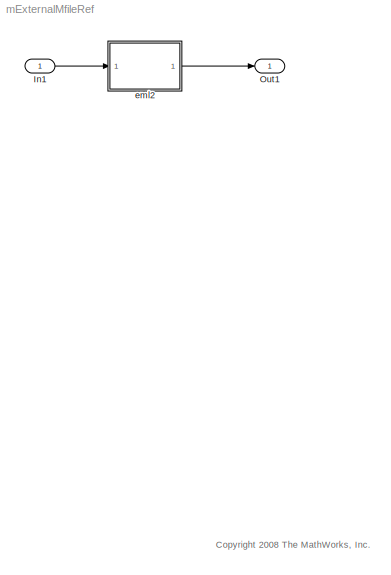
MODEL mExternalMfileRef
KIND model
BLOCK [Inport] In1
  DataType = double
  IconDisplay = Port number
  OutDataType = sfix(16)
  OutDataTypeStr = double
  OutScaling = 2^0
BLOCK [Outport] Out1
  IconDisplay = Port number
  OutDataType = sfix(16)
  OutScaling = 2^0
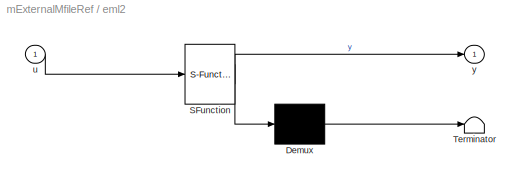
BLOCK [SubSystem] eml2
  FunctionWithSeparateData = off
  MaskDescription = Embedded MATLAB block
  MaskDisplay = disp('fcn');
  MaskHideContents = off
  MaskIconFrame = on
  MaskIconOpaque = off
  MaskIconRotate = none
  MaskIconUnits = autoscale
  MaskPortRotate = default
  MaskSelfModifiable = on
  MaskType = Stateflow
  MinAlgLoopOccurrences = off
  Opaque = off
  PermitHierarchicalResolution = ExplicitOnly
  Ports = [1, 1]
  PropExecContextOutsideSubsystem = off
  RTWSystemCode = Auto
  RequestExecContextInheritance = off
BLOCK [Demux] eml2/ Demux 
  Outputs = 1
  Ports = [1, 1]
BLOCK [S-Function] eml2/ SFunction 
  EnableBusSupport = on
  FunctionName = sf_sfun
  PortCounts = [1 2]
  Ports = [1, 2]
  Tag = Stateflow S-Function mExternalMfileRef 2
BLOCK [Terminator] eml2/ Terminator 
BLOCK [Inport] eml2/u
  IconDisplay = Port number
  OutDataType = sfix(16)
  OutScaling = 2^0
BLOCK [Outport] eml2/y
  IconDisplay = Port number
  OutDataType = sfix(16)
  OutScaling = 2^0
ANNOTATION (root): <copyright redacted>
LINE In1:1 -> eml2:1
LINE eml2/ Demux :1 -> eml2/ Terminator :1
LINE eml2/ SFunction :1 -> eml2/ Demux :1
LINE eml2/ SFunction :2 -> eml2/y:1
LINE eml2/u:1 -> eml2/ SFunction :1
LINE eml2:1 -> Out1:1
CHART eml2 states=1 transitions=1
  STATE_LABEL 'eML_blk_kernel()'
